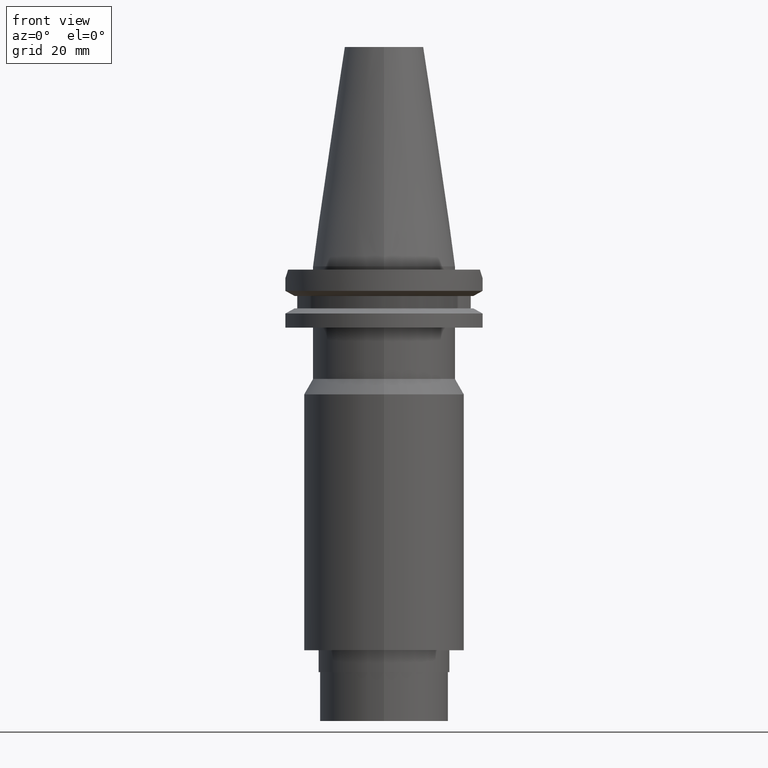
[diagram: clean part render]
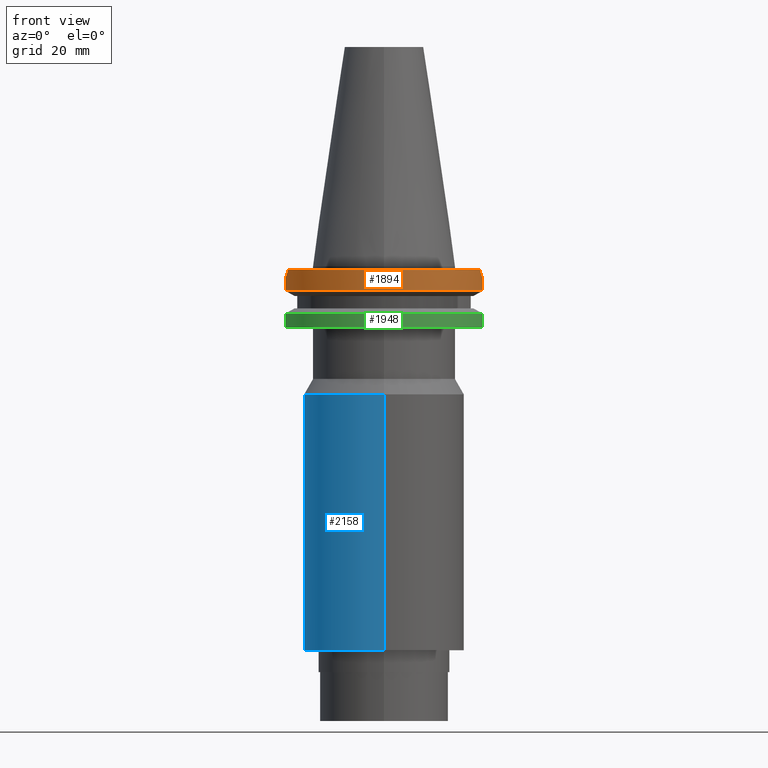
[diagram: same view with three faces highlighted in distinct colors, each labeled with its STEP entity id]
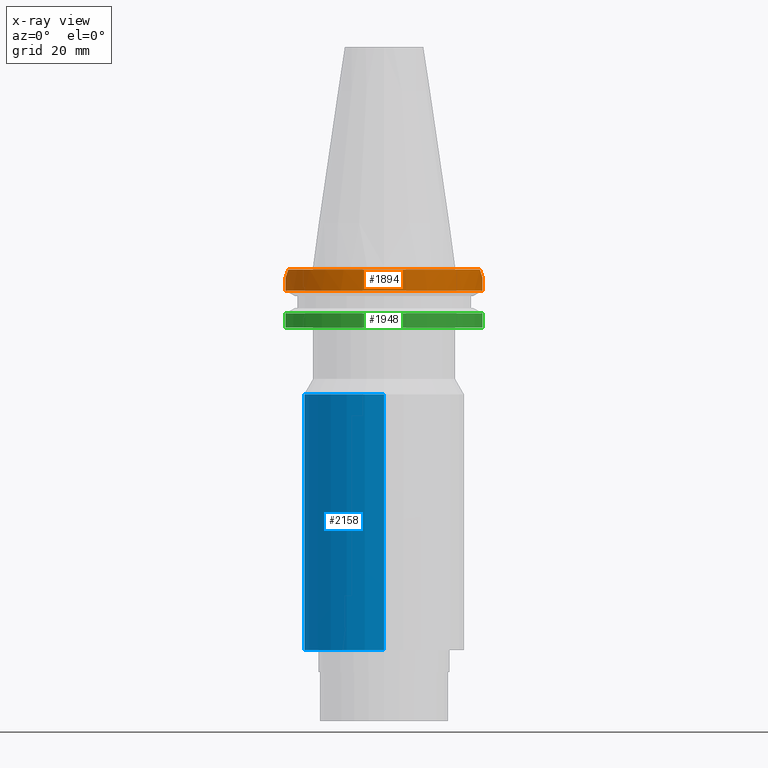
[diagram: x-ray of the same camera — body ghosted, the three highlighted faces saturated]
A machine part, front view with three faces highlighted in distinct colors.
The next image is the same camera in x-ray (body ghosted, the three faces saturated) — at least one of them is partly hidden behind the body in this view.
Their STEP definitions:

[orange] entity #1894 — the highlighted cylindrical surface (partial cylindrical patch) has radius 31.75 mm, axis along (0, 0, -1).
#108=CARTESIAN_POINT('',(0.E0,2.188841840286E-14,-1.E0));
#109=DIRECTION('',(0.E0,0.E0,-1.E0));
#110=DIRECTION('',(9.393382785306E-1,-3.429921259843E-1,0.E0));
#111=AXIS2_PLACEMENT_3D('',#108,#109,#110);
#116=CARTESIAN_POINT('',(0.E0,2.188841840286E-14,-1.E0));
#117=DIRECTION('',(0.E0,0.E0,-1.E0));
#118=DIRECTION('',(0.E0,-1.E0,0.E0));
#119=AXIS2_PLACEMENT_3D('',#116,#117,#118);
#575=CARTESIAN_POINT('',(2.982399034335E1,-1.089E1,-1.000000000001E0));
#576=CARTESIAN_POINT('',(3.015017741992E1,-9.996685011754E0,-1.893314988246E0));
#577=CARTESIAN_POINT('',(3.043345108244E1,-9.096596073173E0,-2.793403926827E0));
#578=CARTESIAN_POINT('',(3.067550162589E1,-8.19E0,-3.7E0));
#583=DIRECTION('',(-4.149952334243E-8,-1.554361652636E-7,-1.E0));
#584=VECTOR('',#583,3.901327811715E0);
#585=CARTESIAN_POINT('',(3.067550162589E1,-8.19E0,-3.7E0));
#586=LINE('',#585,#584);
#590=DIRECTION('',(8.604053470649E-9,-3.222588451522E-8,1.E0));
#591=VECTOR('',#590,3.901334354445E0);
#592=CARTESIAN_POINT('',(-3.067550165946E1,-8.189999874276E0,
-7.601334354445E0));
#593=LINE('',#592,#591);
#597=CARTESIAN_POINT('',(-3.067550162589E1,-8.19E0,-3.7E0));
#598=CARTESIAN_POINT('',(-3.043345108244E1,-9.096596073173E0,
-2.793403926827E0));
#599=CARTESIAN_POINT('',(-3.015017741992E1,-9.996685011754E0,
-1.893314988246E0));
#600=CARTESIAN_POINT('',(-2.982399034335E1,-1.089E1,-1.000000000001E0));
#624=CARTESIAN_POINT('',(3.067550146399E1,-8.190000606407E0,-7.601327811715E0));
#674=CARTESIAN_POINT('',(0.E0,1.121722380079E-14,-7.601333230926E0));
#675=DIRECTION('',(0.E0,0.E0,1.E0));
#676=DIRECTION('',(-9.661575315241E-1,-2.579527559055E-1,0.E0));
#677=AXIS2_PLACEMENT_3D('',#674,#675,#676);
#682=CARTESIAN_POINT('',(0.E0,1.121722380079E-14,-7.601333230926E0));
#683=DIRECTION('',(0.E0,0.E0,1.E0));
#684=DIRECTION('',(0.E0,-1.E0,0.E0));
#685=AXIS2_PLACEMENT_3D('',#682,#683,#684);
#1391=VERTEX_POINT('',#624);
#1392=CARTESIAN_POINT('',(3.067550162589E1,-8.19E0,-3.7E0));
#1393=VERTEX_POINT('',#1392);
#1406=CARTESIAN_POINT('',(-3.067550162589E1,-8.19E0,-3.7E0));
#1407=VERTEX_POINT('',#1406);
#1408=CARTESIAN_POINT('',(-3.067550165946E1,-8.189999874276E0,
-7.601334354445E0));
#1409=VERTEX_POINT('',#1408);
#1460=CARTESIAN_POINT('',(0.E0,-3.175E1,-7.601333230926E0));
#1461=VERTEX_POINT('',#1460);
#1465=VERTEX_POINT('',#575);
#1466=VERTEX_POINT('',#600);
#1467=CARTESIAN_POINT('',(-1.432899828923E-14,-3.175E1,-1.E0));
#1468=VERTEX_POINT('',#1467);
#1874=CARTESIAN_POINT('',(0.E0,2.188841840286E-14,7.87325E1));
#1875=DIRECTION('',(0.E0,0.E0,-1.E0));
#1876=DIRECTION('',(0.E0,-1.E0,0.E0));
#1877=AXIS2_PLACEMENT_3D('',#1874,#1875,#1876);
#1878=CYLINDRICAL_SURFACE('',#1877,3.175E1);
#1880=ORIENTED_EDGE('',*,*,#1879,.T.);
#1882=ORIENTED_EDGE('',*,*,#1881,.T.);
#1884=ORIENTED_EDGE('',*,*,#1883,.F.);
#1886=ORIENTED_EDGE('',*,*,#1885,.F.);
#1888=ORIENTED_EDGE('',*,*,#1887,.T.);
#1889=ORIENTED_EDGE('',*,*,#1866,.T.);
#1890=ORIENTED_EDGE('',*,*,#1573,.F.);
#1891=ORIENTED_EDGE('',*,*,#1571,.F.);
#1892=EDGE_LOOP('',(#1880,#1882,#1884,#1886,#1888,#1889,#1890,#1891));
#1893=FACE_OUTER_BOUND('',#1892,.F.);
#112=CIRCLE('',#111,3.175E1);
#120=CIRCLE('',#119,3.175E1);
#579=B_SPLINE_CURVE_WITH_KNOTS('',3,(#575,#576,#577,#578),.UNSPECIFIED.,.F.,.F.,
(4,4),(0.E0,1.E0),.UNSPECIFIED.);
#601=B_SPLINE_CURVE_WITH_KNOTS('',3,(#597,#598,#599,#600),.UNSPECIFIED.,.F.,.F.,
(4,4),(0.E0,1.E0),.UNSPECIFIED.);
#678=CIRCLE('',#677,3.175E1);
#686=CIRCLE('',#685,3.175E1);
#1571=EDGE_CURVE('',#1465,#1468,#112,.T.);
#1573=EDGE_CURVE('',#1468,#1466,#120,.T.);
#1866=EDGE_CURVE('',#1407,#1466,#601,.T.);
#1879=EDGE_CURVE('',#1465,#1393,#579,.T.);
#1881=EDGE_CURVE('',#1393,#1391,#586,.T.);
#1883=EDGE_CURVE('',#1461,#1391,#686,.T.);
#1885=EDGE_CURVE('',#1409,#1461,#678,.T.);
#1887=EDGE_CURVE('',#1409,#1407,#593,.T.);
#1894=ADVANCED_FACE('',(#1893),#1878,.T.);

[blue] entity #2158 — the highlighted cylindrical surface (partial cylindrical patch) has radius 25 mm, axis along (0, 0, -1).
#900=CARTESIAN_POINT('',(0.E0,0.E0,-3.980644099100E1));
#901=DIRECTION('',(0.E0,0.E0,-1.E0));
#902=DIRECTION('',(0.E0,-1.E0,0.E0));
#903=AXIS2_PLACEMENT_3D('',#900,#901,#902);
#908=DIRECTION('',(0.E0,0.E0,-1.E0));
#909=VECTOR('',#908,7.959355900900E1);
#910=CARTESIAN_POINT('',(0.E0,-2.5E1,-3.980644099100E1));
#911=LINE('',#910,#909);
#915=DIRECTION('',(0.E0,0.E0,-1.E0));
#916=VECTOR('',#915,7.959355900900E1);
#917=CARTESIAN_POINT('',(0.E0,2.5E1,-3.980644099100E1));
#918=LINE('',#917,#916);
#930=CARTESIAN_POINT('',(0.E0,2.188841840286E-14,-1.194E2));
#931=DIRECTION('',(0.E0,0.E0,1.E0));
#932=DIRECTION('',(0.E0,1.E0,0.E0));
#933=AXIS2_PLACEMENT_3D('',#930,#931,#932);
#1338=CARTESIAN_POINT('',(0.E0,-2.5E1,-1.194E2));
#1339=CARTESIAN_POINT('',(0.E0,2.5E1,-1.194E2));
#1340=VERTEX_POINT('',#1338);
#1341=VERTEX_POINT('',#1339);
#1342=CARTESIAN_POINT('',(0.E0,2.5E1,-3.980644099100E1));
#1343=VERTEX_POINT('',#1342);
#1344=CARTESIAN_POINT('',(0.E0,-2.5E1,-3.980644099100E1));
#1345=VERTEX_POINT('',#1344);
#2144=CARTESIAN_POINT('',(0.E0,2.188841840286E-14,7.87325E1));
#2145=DIRECTION('',(0.E0,0.E0,-1.E0));
#2146=DIRECTION('',(0.E0,-1.E0,0.E0));
#2147=AXIS2_PLACEMENT_3D('',#2144,#2145,#2146);
#2148=CYLINDRICAL_SURFACE('',#2147,2.5E1);
#2150=ORIENTED_EDGE('',*,*,#2149,.F.);
#2151=ORIENTED_EDGE('',*,*,#2139,.F.);
#2153=ORIENTED_EDGE('',*,*,#2152,.T.);
#2155=ORIENTED_EDGE('',*,*,#2154,.F.);
#2156=EDGE_LOOP('',(#2150,#2151,#2153,#2155));
#2157=FACE_OUTER_BOUND('',#2156,.F.);
#904=CIRCLE('',#903,2.5E1);
#934=CIRCLE('',#933,2.5E1);
#2139=EDGE_CURVE('',#1345,#1343,#904,.T.);
#2149=EDGE_CURVE('',#1343,#1341,#918,.T.);
#2152=EDGE_CURVE('',#1345,#1340,#911,.T.);
#2154=EDGE_CURVE('',#1341,#1340,#934,.T.);
#2158=ADVANCED_FACE('',(#2157),#2148,.T.);

[green] entity #1948 — the highlighted cylindrical surface (partial cylindrical patch) has radius 31.75 mm, axis along (0, 0, -1).
#235=CARTESIAN_POINT('',(0.E0,2.188841840286E-14,-1.905E1));
#236=DIRECTION('',(0.E0,0.E0,1.E0));
#237=DIRECTION('',(-9.661575315241E-1,-2.579527559055E-1,0.E0));
#238=AXIS2_PLACEMENT_3D('',#235,#236,#237);
#243=CARTESIAN_POINT('',(0.E0,2.188841840286E-14,-1.905E1));
#244=DIRECTION('',(0.E0,0.E0,1.E0));
#245=DIRECTION('',(0.E0,-1.E0,0.E0));
#246=AXIS2_PLACEMENT_3D('',#243,#244,#245);
#636=DIRECTION('',(3.682727718257E-8,1.379364761003E-7,-1.E0));
#637=VECTOR('',#636,4.396327811886E0);
#638=CARTESIAN_POINT('',(3.067550146399E1,-8.190000606414E0,-1.465367218811E1));
#639=LINE('',#638,#637);
#643=DIRECTION('',(-7.635527153159E-9,2.859817695102E-8,1.E0));
#644=VECTOR('',#643,4.396334354432E0);
#645=CARTESIAN_POINT('',(-3.067550162589E1,-8.19E0,-1.905E1));
#646=LINE('',#645,#644);
#792=CARTESIAN_POINT('',(0.E0,1.055026073065E-14,-1.465366676908E1));
#793=DIRECTION('',(0.E0,0.E0,-1.E0));
#794=DIRECTION('',(9.661575315241E-1,-2.579527559055E-1,0.E0));
#795=AXIS2_PLACEMENT_3D('',#792,#793,#794);
#800=CARTESIAN_POINT('',(0.E0,1.055026073065E-14,-1.465366676908E1));
#801=DIRECTION('',(0.E0,0.E0,-1.E0));
#802=DIRECTION('',(0.E0,-1.E0,0.E0));
#803=AXIS2_PLACEMENT_3D('',#800,#801,#802);
#1368=CARTESIAN_POINT('',(-3.067550162589E1,-8.19E0,-1.905E1));
#1369=VERTEX_POINT('',#1368);
#1370=CARTESIAN_POINT('',(2.339637701084E-14,-3.175E1,-1.905E1));
#1371=CARTESIAN_POINT('',(3.067550162589E1,-8.19E0,-1.905E1));
#1372=VERTEX_POINT('',#1370);
#1373=VERTEX_POINT('',#1371);
#1382=CARTESIAN_POINT('',(3.067550146399E1,-8.190000606414E0,
-1.465367218811E1));
#1383=VERTEX_POINT('',#1382);
#1394=CARTESIAN_POINT('',(-3.067550165946E1,-8.189999874273E0,
-1.465366564557E1));
#1395=VERTEX_POINT('',#1394);
#1396=CARTESIAN_POINT('',(0.E0,-3.175E1,-1.465366676908E1));
#1397=VERTEX_POINT('',#1396);
#1932=CARTESIAN_POINT('',(0.E0,2.188841840286E-14,7.87325E1));
#1933=DIRECTION('',(0.E0,0.E0,-1.E0));
#1934=DIRECTION('',(0.E0,-1.E0,0.E0));
#1935=AXIS2_PLACEMENT_3D('',#1932,#1933,#1934);
#1936=CYLINDRICAL_SURFACE('',#1935,3.175E1);
#1937=ORIENTED_EDGE('',*,*,#1914,.T.);
#1938=ORIENTED_EDGE('',*,*,#1633,.F.);
#1939=ORIENTED_EDGE('',*,*,#1631,.F.);
#1941=ORIENTED_EDGE('',*,*,#1940,.T.);
#1943=ORIENTED_EDGE('',*,*,#1942,.F.);
#1945=ORIENTED_EDGE('',*,*,#1944,.F.);
#1946=EDGE_LOOP('',(#1937,#1938,#1939,#1941,#1943,#1945));
#1947=FACE_OUTER_BOUND('',#1946,.F.);
#239=CIRCLE('',#238,3.175E1);
#247=CIRCLE('',#246,3.175E1);
#796=CIRCLE('',#795,3.175E1);
#804=CIRCLE('',#803,3.175E1);
#1631=EDGE_CURVE('',#1369,#1372,#239,.T.);
#1633=EDGE_CURVE('',#1372,#1373,#247,.T.);
#1914=EDGE_CURVE('',#1383,#1373,#639,.T.);
#1940=EDGE_CURVE('',#1369,#1395,#646,.T.);
#1942=EDGE_CURVE('',#1397,#1395,#804,.T.);
#1944=EDGE_CURVE('',#1383,#1397,#796,.T.);
#1948=ADVANCED_FACE('',(#1947),#1936,.T.);